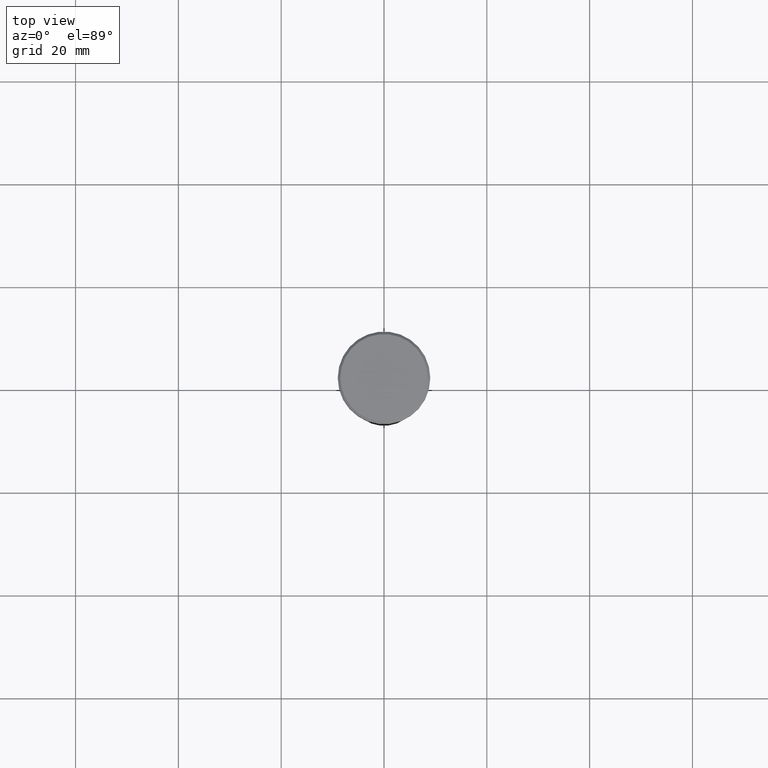
[diagram: clean part render]
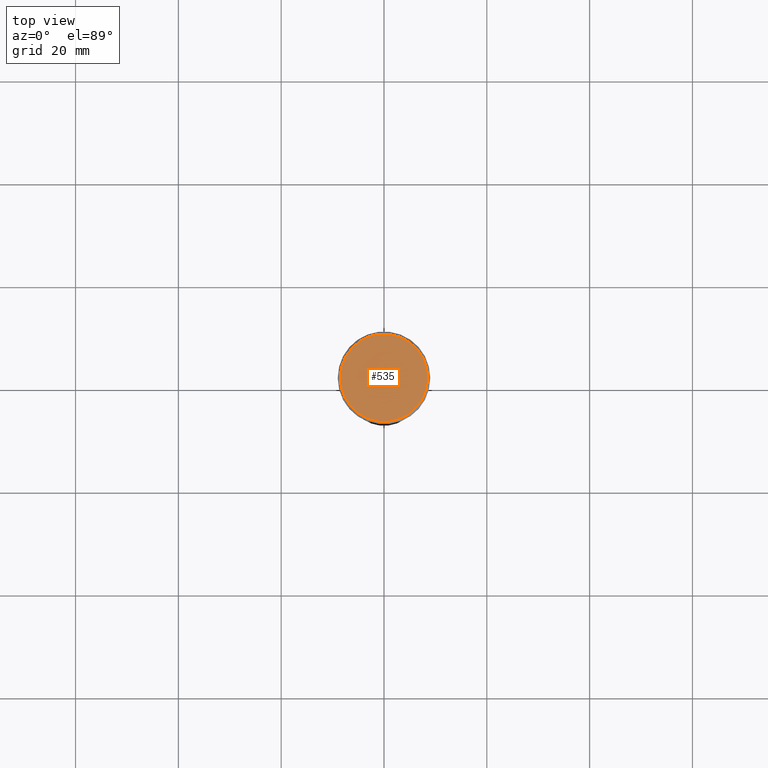
[diagram: same view with one face highlighted and labeled with its STEP entity id]
A machine part, top view. The second image highlights one B-rep face of the part: STEP entity #535.
In plain terms, the highlighted planar face has unit normal (0, -0, 1).
Its self-contained STEP definition (entity closure, byte-faithful):
#7 = AXIS2_PLACEMENT_3D ( 'NONE', #14, #430, #199 ) ;
#14 = CARTESIAN_POINT ( 'NONE',  ( 0.000000000000000000, 0.000000000000000000, 0.000000000000000000 ) ) ;
#63 = PLANE ( 'NONE',  #7 ) ;
#97 = VERTEX_POINT ( 'NONE', #170 ) ;
#140 = DIRECTION ( 'NONE',  ( -0.000000000000000000, -0.000000000000000000, 1.000000000000000000 ) ) ;
#161 = ORIENTED_EDGE ( 'NONE', *, *, #254, .T. ) ;
#170 = CARTESIAN_POINT ( 'NONE',  ( -8.500000000000003553, 0.000000000000000000, 0.000000000000000000 ) ) ;
#199 = DIRECTION ( 'NONE',  ( 1.000000000000000000, 0.000000000000000000, 0.000000000000000000 ) ) ;
#229 = CARTESIAN_POINT ( 'NONE',  ( 8.500000000000003553, 1.071565949253934321E-15, 0.000000000000000000 ) ) ;
#254 = EDGE_CURVE ( 'NONE', #299, #97, #582, .T. ) ;
#255 = DIRECTION ( 'NONE',  ( -0.000000000000000000, -0.000000000000000000, 1.000000000000000000 ) ) ;
#299 = VERTEX_POINT ( 'NONE', #229 ) ;
#372 = AXIS2_PLACEMENT_3D ( 'NONE', #425, #255, #556 ) ;
#421 = EDGE_LOOP ( 'NONE', ( #595, #161 ) ) ;
#425 = CARTESIAN_POINT ( 'NONE',  ( 0.000000000000000000, 0.000000000000000000, 0.000000000000000000 ) ) ;
#430 = DIRECTION ( 'NONE',  ( 0.000000000000000000, -0.000000000000000000, 1.000000000000000000 ) ) ;
#439 = DIRECTION ( 'NONE',  ( 1.000000000000000000, 0.000000000000000000, 0.000000000000000000 ) ) ;
#474 = FACE_OUTER_BOUND ( 'NONE', #421, .T. ) ;
#518 = AXIS2_PLACEMENT_3D ( 'NONE', #528, #140, #439 ) ;
#526 = EDGE_CURVE ( 'NONE', #97, #299, #593, .T. ) ;
#528 = CARTESIAN_POINT ( 'NONE',  ( 0.000000000000000000, 0.000000000000000000, 0.000000000000000000 ) ) ;
#535 = ADVANCED_FACE ( 'NONE', ( #474 ), #63, .T. ) ;
#556 = DIRECTION ( 'NONE',  ( 1.000000000000000000, 0.000000000000000000, 0.000000000000000000 ) ) ;
#582 = CIRCLE ( 'NONE', #518, 8.500000000000003553 ) ;
#593 = CIRCLE ( 'NONE', #372, 8.500000000000003553 ) ;
#595 = ORIENTED_EDGE ( 'NONE', *, *, #526, .T. ) ;